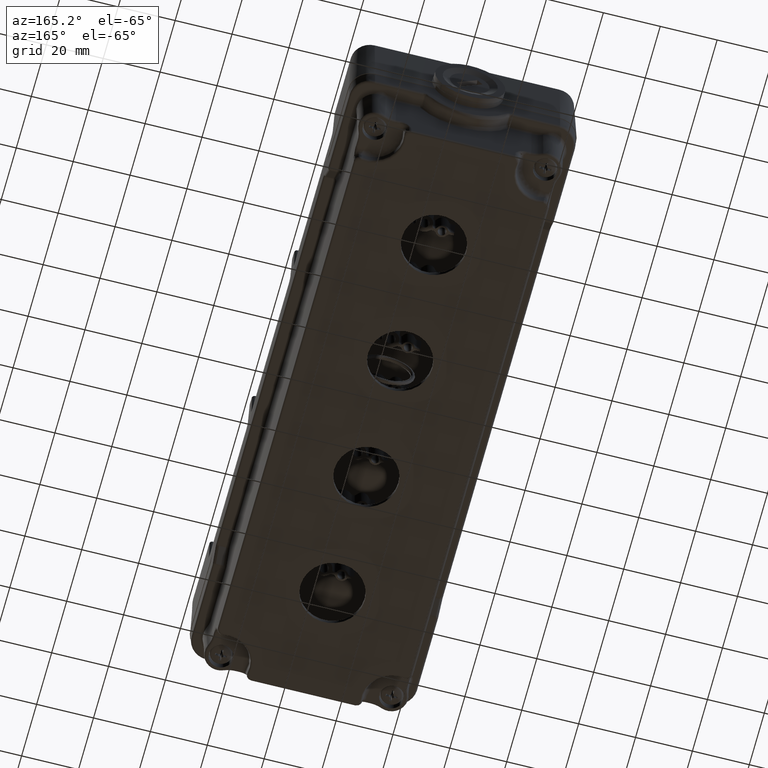
[diagram: clean part render]
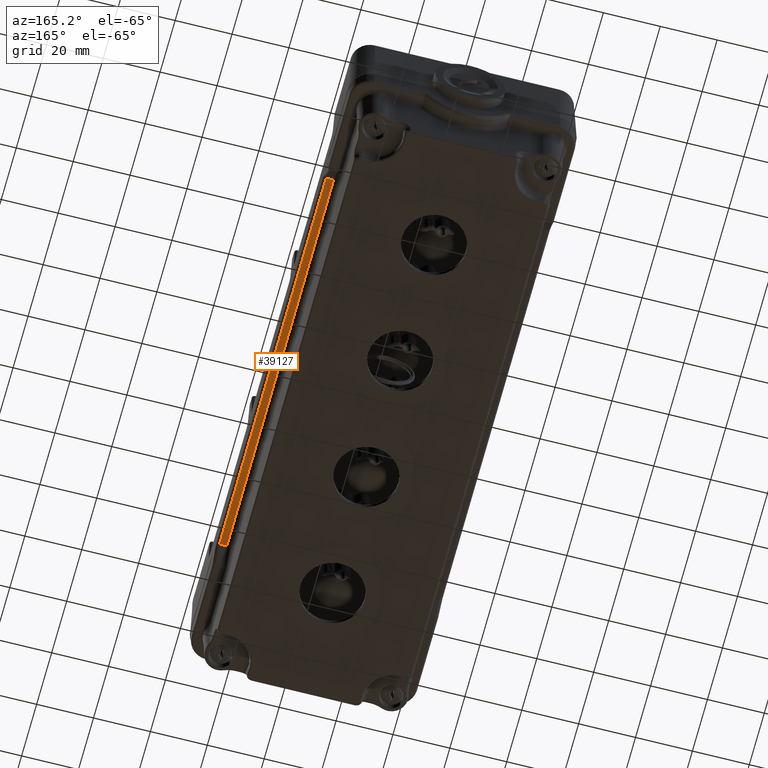
[diagram: same view with one face highlighted and labeled with its STEP entity id]
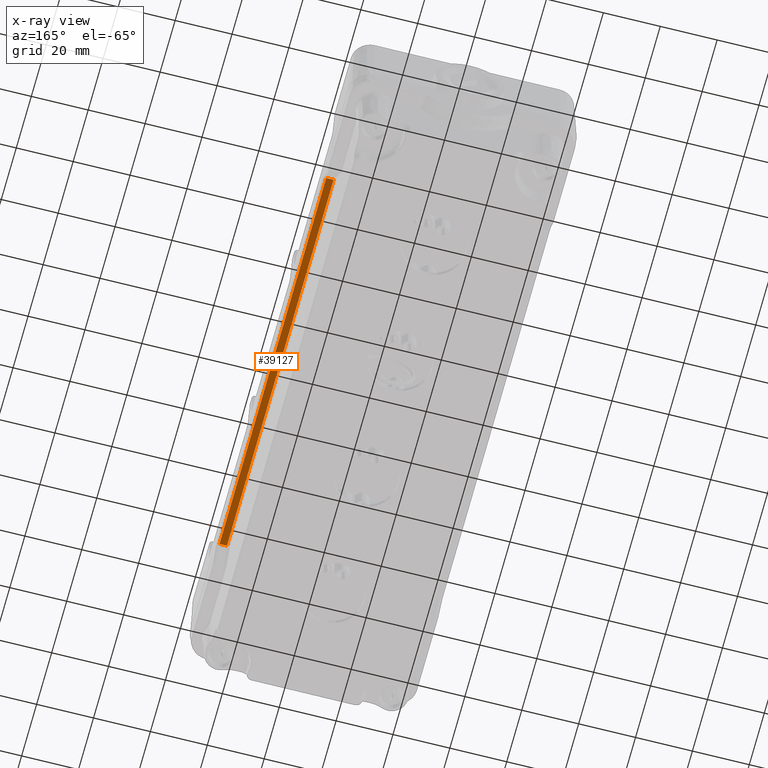
[diagram: x-ray of the same camera — body ghosted, the highlighted face saturated]
A machine part, auxiliary view. The second image highlights one B-rep face of the part: STEP entity #39127.
The next image is the same camera in x-ray: the body ghosted, the highlighted face saturated — about 0% of this face is hidden behind the body in this view.
In plain terms, the highlighted face is a freeform B-spline surface patch.
Its self-contained STEP definition (entity closure, byte-faithful):
#36956=CARTESIAN_POINT('',(-10.501025383718584,-29.236145261751801,5.961445465412089));
#36957=VERTEX_POINT('',#36956);
#37009=CARTESIAN_POINT('',(-10.501025383718565,-171.197088774554800,5.961445465412080));
#37010=VERTEX_POINT('',#37009);
#37239=CARTESIAN_POINT('',(-7.889557666429714,-29.236145261751801,5.870251003221504));
#37240=VERTEX_POINT('',#37239);
#37280=CARTESIAN_POINT('',(-10.501025383718584,-29.236145261751801,5.961445465412089));
#37281=DIRECTION('',(0.999390827019096,0.0,-0.034899496702501));
#37282=VECTOR('',#37281,2.613059522547501);
#37283=LINE('',#37280,#37282);
#37284=EDGE_CURVE('',#36957,#37240,#37283,.T.);
#37333=CARTESIAN_POINT('',(-7.889557666429722,-171.197088774554800,5.870251003221495));
#37334=VERTEX_POINT('',#37333);
#37367=CARTESIAN_POINT('',(-7.889557666429722,-171.197088774554800,5.870251003221495));
#37368=DIRECTION('',(-0.999390827019096,0.0,0.034899496702501));
#37369=VECTOR('',#37368,2.613059522547474);
#37370=LINE('',#37367,#37369);
#37371=EDGE_CURVE('',#37334,#37010,#37370,.T.);
#37392=CARTESIAN_POINT('',(-7.889557666429714,-29.236145261751801,5.870251003221504));
#37393=DIRECTION('',(0.0,-1.0,0.0));
#37394=VECTOR('',#37393,141.960943512803000);
#37395=LINE('',#37392,#37394);
#37396=EDGE_CURVE('',#37240,#37334,#37395,.T.);
#37449=CARTESIAN_POINT('',(-10.501025383718565,-171.197088774554800,5.961445465412080));
#37450=DIRECTION('',(0.0,1.0,0.0));
#37451=VECTOR('',#37450,141.960943512803000);
#37452=LINE('',#37449,#37451);
#37453=EDGE_CURVE('',#37010,#36957,#37452,.T.);
#39116=CARTESIAN_POINT('',(-10.501025383718588,-29.236145261751801,5.961445465412089));
#39117=CARTESIAN_POINT('',(-7.889557666429715,-29.236145261751801,5.870251003221504));
#39118=CARTESIAN_POINT('',(-10.501025383718588,-171.197088774554800,5.961445465412080));
#39119=CARTESIAN_POINT('',(-7.889557666429713,-171.197088774554800,5.870251003221496));
#39120=B_SPLINE_SURFACE_WITH_KNOTS('',1,1,((#39116,#39118),(#39117,#39119)),.UNSPECIFIED.,.F.,.F.,.U.,(2,2),(2,2),(0.0,2.613059522547504),(0.0,141.960943512803000),.UNSPECIFIED.);
#39121=ORIENTED_EDGE('',*,*,#37371,.F.);
#39122=ORIENTED_EDGE('',*,*,#37396,.F.);
#39123=ORIENTED_EDGE('',*,*,#37284,.F.);
#39124=ORIENTED_EDGE('',*,*,#37453,.F.);
#39125=EDGE_LOOP('',(#39121,#39122,#39123,#39124));
#39126=FACE_OUTER_BOUND('',#39125,.T.);
#39127=ADVANCED_FACE('',(#39126),#39120,.F.);